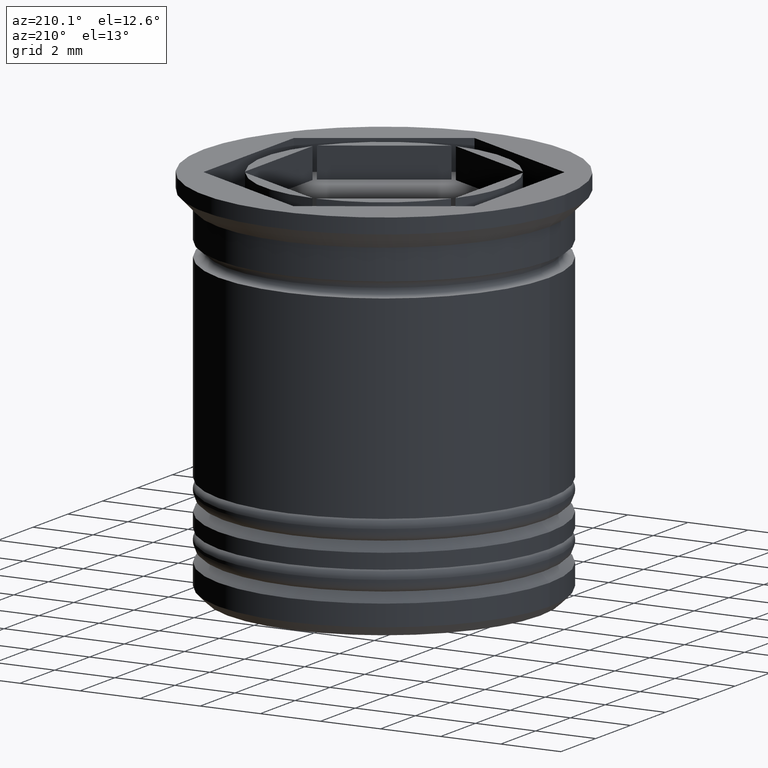
[diagram: clean part render]
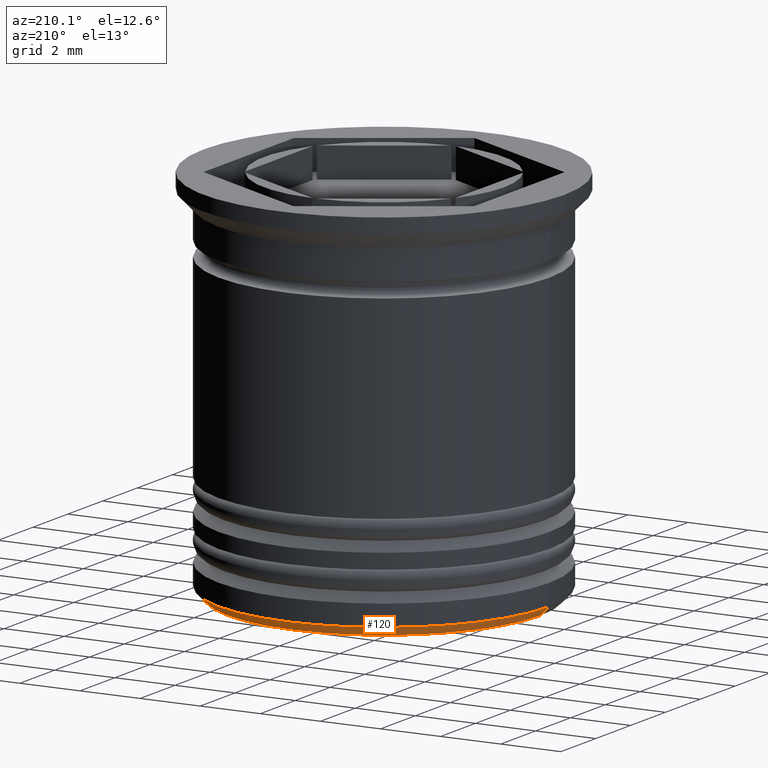
[diagram: same view with one face highlighted and labeled with its STEP entity id]
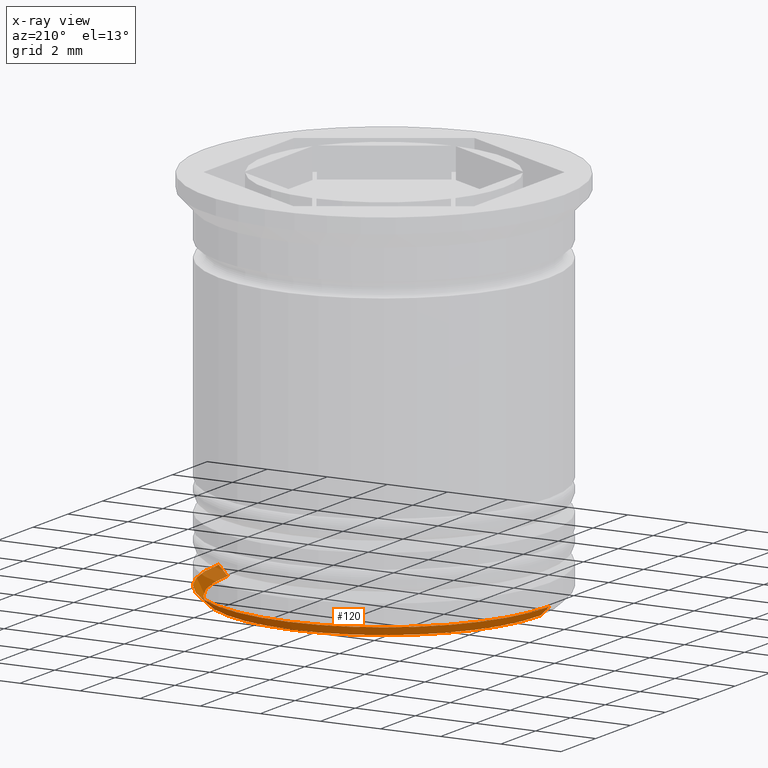
[diagram: x-ray of the same camera — body ghosted, the highlighted face saturated]
A machine part, auxiliary view. The second image highlights one B-rep face of the part: STEP entity #120.
The next image is the same camera in x-ray: the body ghosted, the highlighted face saturated — about 13% of this face is hidden behind the body in this view.
In plain terms, the highlighted conical surface has half-angle 45 deg.
Its self-contained STEP definition (entity closure, byte-faithful):
#90 = AXIS2_PLACEMENT_3D ( 'NONE', #1475, #1768, #865 ) ;
#101 = VECTOR ( 'NONE', #1717, 1000.000000000000000 ) ;
#115 = CARTESIAN_POINT ( 'NONE',  ( 5.500000000000001776, 0.000000000000000000, -12.19999999999999574 ) ) ;
#120 = ADVANCED_FACE ( 'NONE', ( #842 ), #1686, .T. ) ;
#174 = CARTESIAN_POINT ( 'NONE',  ( -5.500000000000001776, 6.735557395310443009E-16, -12.19999999999999574 ) ) ;
#210 = CARTESIAN_POINT ( 'NONE',  ( 5.500000000000001776, 0.000000000000000000, -12.19999999999999574 ) ) ;
#222 = CARTESIAN_POINT ( 'NONE',  ( 0.000000000000000000, 0.000000000000000000, -12.50000000000000000 ) ) ;
#270 = ORIENTED_EDGE ( 'NONE', *, *, #312, .T. ) ;
#312 = EDGE_CURVE ( 'NONE', #545, #614, #495, .T. ) ;
#313 = ORIENTED_EDGE ( 'NONE', *, *, #1352, .F. ) ;
#323 = AXIS2_PLACEMENT_3D ( 'NONE', #801, #1302, #1450 ) ;
#449 = ORIENTED_EDGE ( 'NONE', *, *, #827, .F. ) ;
#487 = CIRCLE ( 'NONE', #323, 5.500000000000001776 ) ;
#495 = LINE ( 'NONE', #174, #1330 ) ;
#534 = VERTEX_POINT ( 'NONE', #115 ) ;
#545 = VERTEX_POINT ( 'NONE', #1788 ) ;
#578 = EDGE_LOOP ( 'NONE', ( #313, #270, #449, #1908 ) ) ;
#614 = VERTEX_POINT ( 'NONE', #1027 ) ;
#651 = DIRECTION ( 'NONE',  ( 0.000000000000000000, 0.000000000000000000, -1.000000000000000000 ) ) ;
#801 = CARTESIAN_POINT ( 'NONE',  ( 0.000000000000000000, 0.000000000000000000, -12.19999999999999574 ) ) ;
#827 = EDGE_CURVE ( 'NONE', #534, #614, #487, .T. ) ;
#842 = FACE_OUTER_BOUND ( 'NONE', #578, .T. ) ;
#865 = DIRECTION ( 'NONE',  ( 1.000000000000000000, 0.000000000000000000, 0.000000000000000000 ) ) ;
#1027 = CARTESIAN_POINT ( 'NONE',  ( -5.500000000000001776, 6.735557395310443995E-16, -12.19999999999999574 ) ) ;
#1101 = AXIS2_PLACEMENT_3D ( 'NONE', #222, #651, #1731 ) ;
#1115 = LINE ( 'NONE', #210, #101 ) ;
#1251 = CARTESIAN_POINT ( 'NONE',  ( 5.199999999999996625, 0.000000000000000000, -12.50000000000000000 ) ) ;
#1302 = DIRECTION ( 'NONE',  ( -0.000000000000000000, -0.000000000000000000, 1.000000000000000000 ) ) ;
#1330 = VECTOR ( 'NONE', #1408, 1000.000000000000000 ) ;
#1338 = CIRCLE ( 'NONE', #1101, 5.199999999999996625 ) ;
#1352 = EDGE_CURVE ( 'NONE', #545, #1575, #1338, .T. ) ;
#1408 = DIRECTION ( 'NONE',  ( -0.7071067811865475727, 8.659560562354931626E-17, 0.7071067811865474617 ) ) ;
#1450 = DIRECTION ( 'NONE',  ( -1.000000000000000000, 0.000000000000000000, 0.000000000000000000 ) ) ;
#1475 = CARTESIAN_POINT ( 'NONE',  ( 0.000000000000000000, 0.000000000000000000, -12.19999999999999574 ) ) ;
#1567 = EDGE_CURVE ( 'NONE', #1575, #534, #1115, .T. ) ;
#1575 = VERTEX_POINT ( 'NONE', #1251 ) ;
#1686 = CONICAL_SURFACE ( 'NONE', #90, 5.500000000000001776, 0.7853981633974482790 ) ;
#1717 = DIRECTION ( 'NONE',  ( 0.7071067811865475727, 0.000000000000000000, 0.7071067811865474617 ) ) ;
#1731 = DIRECTION ( 'NONE',  ( -1.000000000000000000, 0.000000000000000000, 0.000000000000000000 ) ) ;
#1768 = DIRECTION ( 'NONE',  ( -0.000000000000000000, -0.000000000000000000, 1.000000000000000000 ) ) ;
#1788 = CARTESIAN_POINT ( 'NONE',  ( -5.199999999999996625, 6.551860375438336737E-16, -12.50000000000000000 ) ) ;
#1908 = ORIENTED_EDGE ( 'NONE', *, *, #1567, .F. ) ;